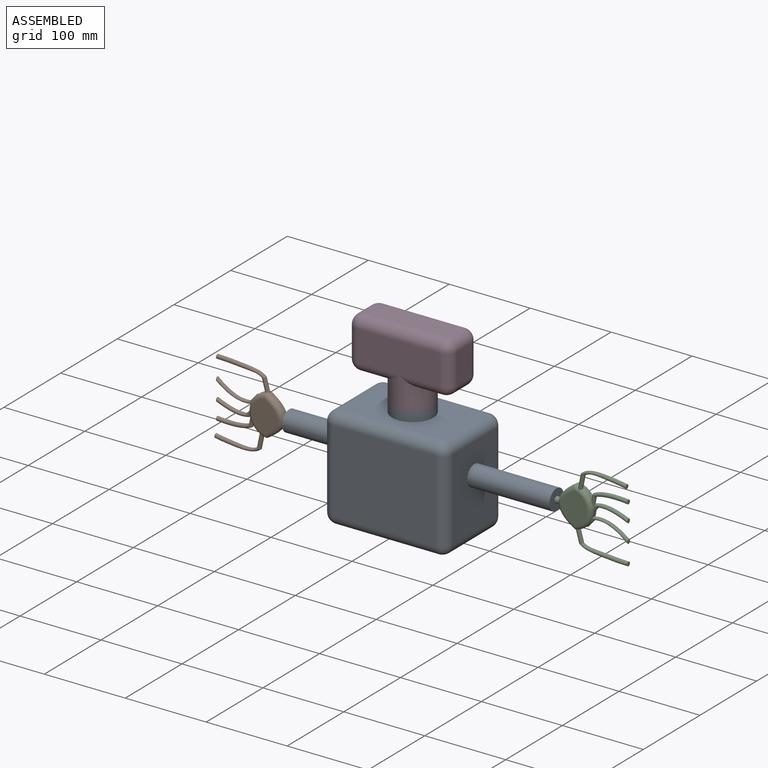
[diagram: assembled view]
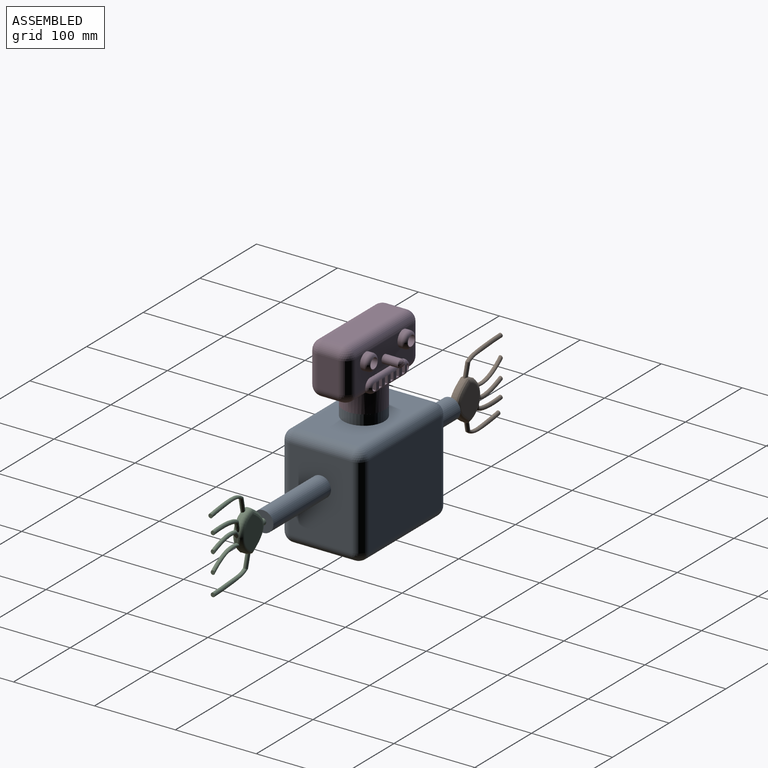
[diagram: assembled view, second angle]
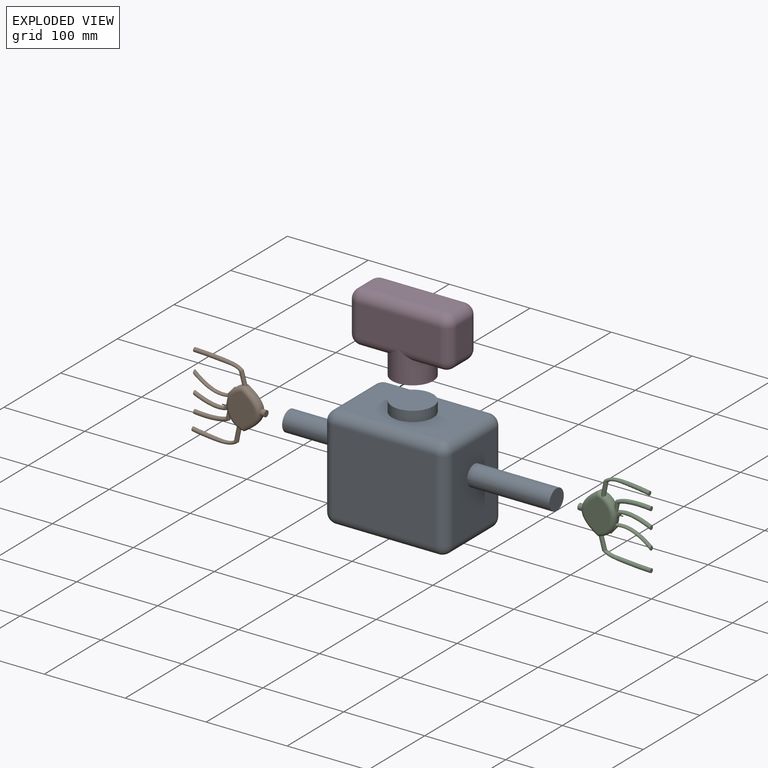
[diagram: exploded view]
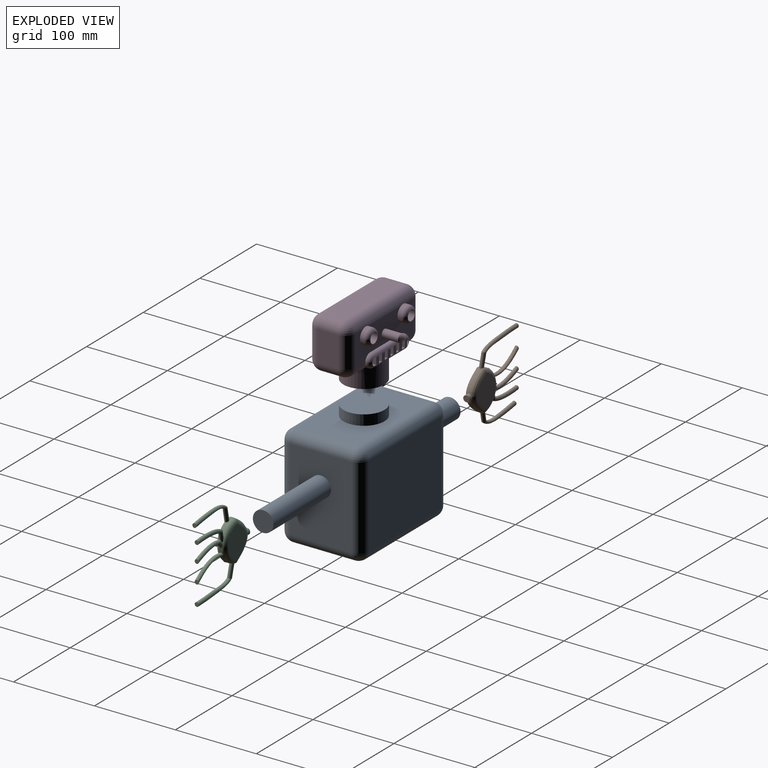
[diagram: exploded view, second angle]
ASSEMBLY  parts=4 mates=3
PART A: 32 faces, bbox 330.2x101.6x139.7 mm
  f0: plane 127x101.6mm, normal (0,-1,0), area 12903.2mm2, adj f16,f21,f24,f27
  f1: plane 101.6x76.2mm, normal (1,0,0), area 7235.2mm2, adj f13,f22,f23,f27,f28
  f2: plane 127x101.6mm, normal (0,1,0), area 12903.2mm2, adj f8,f12,f13,f14
  f3: plane 101.6x76.2mm, normal (-1,0,0), area 7235.2mm2, adj f8,f11,f15,f16,f30
  f4: plane 127x76.2mm, normal (0,0,1), area 7650.6mm2, adj f6,f11,f12,f21,f22
  f5: plane 127x76.2mm, normal (0,0,-1), area 9677.4mm2, adj f14,f15,f23,f24
  f6: cylinder r=25.4mm len=50.8mm, axis (0,0,-1), area 2026.8mm2, adj f4,f7
  f7: plane 50.8x50.8mm, normal (0,0,1), area 2026.8mm2, adj f6
  f8: cylinder r=12.7mm len=101.6mm, axis (0,0,1), area 2026.8mm2, adj f2,f3,f9,f10
  f9: sphere r=12.7mm, area 253.4mm2, adj f8,f11,f12
  f10: sphere r=12.7mm, area 253.4mm2, adj f8,f14,f15
  f11: cylinder r=12.7mm len=76.2mm, axis (0,1,0), area 1520.1mm2, adj f3,f4,f9,f17
  f12: cylinder r=12.7mm len=127mm, axis (1,0,0), area 2533.5mm2, adj f2,f4,f9,f18
  f13: cylinder r=12.7mm len=101.6mm, axis (0,0,-1), area 2026.8mm2, adj f1,f2,f18,f19
  f14: cylinder r=12.7mm len=127mm, axis (-1,0,0), area 2533.5mm2, adj f2,f5,f10,f19
  f15: cylinder r=12.7mm len=76.2mm, axis (0,-1,0), area 1520.1mm2, adj f3,f5,f10,f20
  f16: cylinder r=12.7mm len=101.6mm, axis (0,0,-1), area 2026.8mm2, adj f0,f3,f17,f20
  f17: sphere r=12.7mm, area 253.4mm2, adj f11,f16,f21
  f18: sphere r=12.7mm, area 253.4mm2, adj f12,f13,f22
  f19: sphere r=12.7mm, area 253.4mm2, adj f13,f14,f23
  f20: sphere r=12.7mm, area 253.4mm2, adj f15,f16,f24
  f21: cylinder r=12.7mm len=127mm, axis (-1,0,0), area 2533.5mm2, adj f0,f4,f17,f25
  f22: cylinder r=12.7mm len=76.2mm, axis (0,-1,0), area 1520.1mm2, adj f1,f4,f18,f25
  f23: cylinder r=12.7mm len=76.2mm, axis (0,1,0), area 1520.1mm2, adj f1,f5,f19,f26
  f24: cylinder r=12.7mm len=127mm, axis (1,0,0), area 2533.5mm2, adj f0,f5,f20,f26
  f25: sphere r=12.7mm, area 253.4mm2, adj f21,f22,f27
  f26: sphere r=12.7mm, area 253.4mm2, adj f23,f24,f27
  f27: cylinder r=12.7mm len=101.6mm, axis (0,0,1), area 2026.8mm2, adj f0,f1,f25,f26
  f28: cylinder r=12.7mm len=101.6mm, axis (-1,0,0), area 8107.3mm2, adj f1,f29
  f29: plane 25.4x25.4mm, normal (1,0,0), area 506.7mm2, adj f28
  f30: cylinder r=12.7mm len=76.2mm, axis (1,0,0), area 6080.5mm2, adj f3,f31
  f31: plane 25.4x25.4mm, normal (-1,0,0), area 506.7mm2, adj f30
PART B: 31 faces, bbox 96.9x13.4x89.6 mm
  f0: extruded ~21.81x20.44mm, area 77.5mm2, adj f1,f23,f26,f29
  f1: cylinder r=25.7mm len=18.64mm, axis (0,1,0), area 56.5mm2, adj f0,f6,f17,f25,f28
  f2: cylinder r=25.7mm len=6.63mm, axis (0,1,0), area 15.8mm2, adj f10,f20,f25,f28
  f3: plane 5.79x5.79mm, normal (0,0,1), area 20.3mm2, adj f4
  f4: bspline ~40.44x12.81mm, area 600.5mm2, adj f3,f20
  f5: cylinder r=25.7mm len=9.94mm, axis (0,1,0), area 28.9mm2, adj f12,f22,f25,f28
  f6: extruded ~14.08x6.41mm, area 137.3mm2, adj f1,f16,f20,f25,f28
  f7: extruded ~21.19x19.43mm, area 74.8mm2, adj f12,f23,f26,f29
  f8: plane 40.13x32.47mm, normal (0,-1,0), area 906.8mm2, adj f26,f27,f28
  f9: plane 40.13x32.47mm, normal (0,1,0), area 906.7mm2, adj f23,f24,f25
  f10: bspline ~45.4x19.99mm, area 635.4mm2, adj f2,f11,f21,f25,f28
  f11: plane 5.79x5.79mm, normal (0,0,1), area 20.3mm2, adj f10
  f12: cylinder r=2.54mm len=17.63mm, axis (-0.96,0,0.27), area 257.9mm2, adj f5,f7,f14,f23,f24,f26,f27
  f13: plane 5.79x5.79mm, normal (0,0,1), area 20.3mm2, adj f14
  f14: bspline ~60.25x10.81mm, area 906.8mm2, adj f12,f13
  f15: plane 5.79x5.79mm, normal (0,0,1), area 20.3mm2, adj f16
  f16: bspline ~43.75x8.16mm, area 666.6mm2, adj f6,f15
  f17: cylinder r=2.54mm len=18.65mm, axis (0.98,0,0.2), area 264.3mm2, adj f1,f19,f25
  f18: plane 5.79x5.79mm, normal (0,0,1), area 20.3mm2, adj f19
  f19: bspline ~56.41x8.76mm, area 823mm2, adj f17,f18
  f20: cylinder r=2.54mm len=9.03mm, axis (0.76,0,0.65), area 83.6mm2, adj f2,f4,f6,f25,f28
  f21: extruded ~11x10.53mm, area 65.6mm2, adj f10,f22,f25,f28
  f22: plane 3.98x0.83mm, normal (-0.86,0,-0.51), area 2.5mm2, adj f5,f21,f25,f28
  f23: bspline ~54.32x28.78mm, area 487.9mm2, adj f0,f7,f9,f12,f24,f25,f29
  f24: bspline ~5.73x5.16mm, area 17mm2, adj f9,f12,f23,f25
  f25: torus R=20.62mm, axis (0,-1,0), area 463.5mm2, adj f1,f2,f5,f6,f9,f10,f17,f20
  f26: bspline ~54.32x28.78mm, area 488mm2, adj f0,f7,f8,f12,f27,f28,f29
  f27: bspline ~5.74x5.21mm, area 17mm2, adj f8,f12,f26,f28
  f28: torus R=20.62mm, axis (0,-1,0), area 483.7mm2, adj f1,f2,f5,f6,f8,f10,f20,f21
  f29: cylinder r=3.81mm len=7.62mm, axis (0,0,1), area 118.9mm2, adj f0,f7,f23,f26,f30
  f30: plane 7.62x7.62mm, normal (0,0,-1), area 45.6mm2, adj f29
PART C: same geometry as B
PART D: 89 faces, bbox 127.1x76.3x89 mm
  f0: cylinder r=12.7mm len=101.6mm, axis (-1,0,0), area 2009.9mm2, adj f30,f34,f59,f68,f82,f86
  f1: plane 6.88x5.08mm, normal (0,1,0), area 34.9mm2, adj f53,f54,f77,f78
  f2: plane 6.88x5.08mm, normal (0,1,0), area 34.9mm2, adj f51,f52,f77,f78
  f3: plane 6.88x5.08mm, normal (0,1,0), area 34.9mm2, adj f49,f50,f77,f78
  f4: plane 6.88x5.08mm, normal (0,1,0), area 34.9mm2, adj f43,f44,f77,f78
  f5: plane 6.88x5.08mm, normal (0,1,0), area 34.9mm2, adj f45,f46,f77,f78
  f6: plane 28.8x25.4mm, normal (0,0,-1), area 673.2mm2, adj f7,f10,f73,f74
  f7: cylinder r=12.7mm len=50.8mm, axis (-1,0,0), area 764.7mm2, adj f6,f35,f71,f74
  f8: cylinder r=12.7mm len=50.8mm, axis (-1,0,0), area 764.7mm2, adj f32,f35,f66,f74
  f9: cylinder r=12.7mm len=36.84mm, axis (1,0,0), area 501.5mm2, adj f30,f32,f37,f38,f67,f74
  f10: cylinder r=12.7mm len=36.84mm, axis (1,0,0), area 458.8mm2, adj f6,f30,f38,f39,f72,f74
  f11: plane 6.19x1.78mm, normal (0,0,-1), area 11mm2, adj f13,f40,f54,f77
  f12: plane 6.19x1.78mm, normal (0,0,1), area 11mm2, adj f13,f40,f54,f78
  f13: plane 9.42x6.49mm, normal (0,1,0), area 51.6mm2, adj f11,f12,f40,f54
  f14: plane 6.19x5.08mm, normal (0,0,-1), area 31.4mm2, adj f16,f52,f53,f77
  f15: plane 6.19x5.08mm, normal (0,0,1), area 31.4mm2, adj f16,f52,f53,f78
  f16: plane 9.42x5.08mm, normal (0,1,0), area 47.8mm2, adj f14,f15,f52,f53
  f17: plane 6.19x5.08mm, normal (0,0,-1), area 31.4mm2, adj f19,f49,f51,f77
  f18: plane 6.19x5.08mm, normal (0,0,1), area 31.4mm2, adj f19,f49,f51,f78
  f19: plane 9.42x5.08mm, normal (0,1,0), area 47.8mm2, adj f17,f18,f49,f51
  f20: plane 6.19x5.08mm, normal (0,0,-1), area 31.4mm2, adj f22,f46,f47,f77
  f21: plane 6.19x5.08mm, normal (0,0,1), area 31.4mm2, adj f22,f46,f47,f78
  f22: plane 9.42x5.08mm, normal (0,1,0), area 47.8mm2, adj f20,f21,f46,f47
  f23: cylinder r=4.71mm len=9.1mm, axis (0,-1,0), area 76.4mm2, adj f42,f48,f76
  f24: plane 6.19x5.08mm, normal (0,0,-1), area 31.4mm2, adj f26,f44,f45,f77
  f25: plane 6.19x5.08mm, normal (0,0,1), area 31.4mm2, adj f26,f44,f45,f78
  f26: plane 9.42x5.08mm, normal (0,1,0), area 47.8mm2, adj f24,f25,f44,f45
  f27: plane 6.19x5.08mm, normal (0,0,-1), area 31.4mm2, adj f29,f43,f50,f77
  f28: plane 6.19x5.08mm, normal (0,0,1), area 31.4mm2, adj f29,f43,f50,f78
  f29: plane 9.42x5.08mm, normal (0,1,0), area 47.8mm2, adj f27,f28,f43,f50
  f30: plane 101.6x38.1mm, normal (0,1,0), area 2640.6mm2, adj f0,f9,f10,f36,f37,f39,f55,f63
  f31: plane 38.1x25.4mm, normal (-1,0,0), area 967.7mm2, adj f64,f69,f70,f73
  f32: plane 28.8x25.4mm, normal (0,0,-1), area 673.2mm2, adj f8,f9,f62,f74
  f33: plane 38.1x25.4mm, normal (1,0,0), area 967.7mm2, adj f57,f61,f62,f63
  f34: plane 101.6x25.4mm, normal (0,0,1), area 2580.6mm2, adj f0,f57,f60,f64
  f35: plane 101.6x38.1mm, normal (0,-1,0), area 3871mm2, adj f7,f8,f60,f61,f69
  f36: plane 54.83x1.27mm, normal (0,0,1), area 69.6mm2, adj f30,f37,f39,f77
  f37: cylinder r=8.52mm len=17.04mm, axis (0,-1,0), area 62.1mm2, adj f9,f30,f36,f38,f79
  f38: plane 54.83x5.45mm, normal (0,0,-1), area 219.6mm2, adj f9,f10,f37,f39,f74,f78
  f39: cylinder r=8.52mm len=17.04mm, axis (0,-1,0), area 62.1mm2, adj f10,f30,f36,f38,f76
  f40: cylinder r=4.71mm len=9.42mm, axis (0,-1,0), area 91.5mm2, adj f11,f12,f13,f79
  f41: plane 6.88x3.46mm, normal (0,1,0), area 23.6mm2, adj f47,f48,f76,f77,f78
  f42: plane 9.1x3.5mm, normal (0,1,0), area 23.6mm2, adj f23,f48
  f43: plane 9.42x6.35mm, normal (1,0,0), area 59.7mm2, adj f4,f27,f28,f29,f77,f78
  f44: plane 9.42x6.35mm, normal (-1,0,0), area 59.7mm2, adj f4,f24,f25,f26,f77,f78
  f45: plane 9.42x6.35mm, normal (1,0,0), area 59.7mm2, adj f5,f24,f25,f26,f77,f78
  f46: plane 9.42x6.35mm, normal (-1,0,0), area 59.7mm2, adj f5,f20,f21,f22,f77,f78
  f47: plane 9.42x6.35mm, normal (1,0,0), area 59.7mm2, adj f20,f21,f22,f41,f77,f78
  f48: plane 9.17x6.42mm, normal (-1,0,0), area 57.7mm2, adj f23,f41,f42,f76
  f49: plane 9.42x6.35mm, normal (1,0,0), area 59.7mm2, adj f3,f17,f18,f19,f77,f78
  f50: plane 9.42x6.35mm, normal (-1,0,0), area 59.7mm2, adj f3,f27,f28,f29,f77,f78
  f51: plane 9.42x6.35mm, normal (-1,0,0), area 59.7mm2, adj f2,f17,f18,f19,f77,f78
  f52: plane 9.42x6.35mm, normal (1,0,0), area 59.7mm2, adj f2,f14,f15,f16,f77,f78
  f53: plane 9.42x6.35mm, normal (-1,0,0), area 59.7mm2, adj f1,f14,f15,f16,f77,f78
  f54: plane 9.42x6.35mm, normal (1,0,0), area 59.7mm2, adj f1,f11,f12,f13,f77,f78
  f55: cylinder r=5.11mm len=20.32mm, axis (0,-1,0), area 652.7mm2, adj f30,f80
  f56: plane 0.06x0.06mm, normal (0,1,0), area 0mm2, adj f80
  f57: cylinder r=12.7mm len=25.4mm, axis (0,-1,0), area 506.7mm2, adj f33,f34,f58,f59
  f58: sphere r=12.7mm, area 253.4mm2, adj f57,f60,f61
  f59: sphere r=12.7mm, area 253.4mm2, adj f0,f57,f63
  f60: cylinder r=12.7mm len=101.6mm, axis (1,0,0), area 2026.8mm2, adj f34,f35,f58,f65
  f61: cylinder r=12.7mm len=38.1mm, axis (0,0,-1), area 760.1mm2, adj f33,f35,f58,f66
  f62: cylinder r=12.7mm len=25.4mm, axis (0,1,0), area 506.7mm2, adj f32,f33,f66,f67
  f63: cylinder r=12.7mm len=38.1mm, axis (0,0,1), area 760.1mm2, adj f30,f33,f59,f67
  f64: cylinder r=12.7mm len=25.4mm, axis (0,1,0), area 506.7mm2, adj f31,f34,f65,f68
  f65: sphere r=12.7mm, area 253.4mm2, adj f60,f64,f69
  f66: sphere r=12.7mm, area 253.4mm2, adj f8,f61,f62
  f67: sphere r=12.7mm, area 253.4mm2, adj f9,f62,f63
  f68: sphere r=12.7mm, area 253.4mm2, adj f0,f64,f70
  f69: cylinder r=12.7mm len=38.1mm, axis (0,0,1), area 760.1mm2, adj f31,f35,f65,f71
  f70: cylinder r=12.7mm len=38.1mm, axis (0,0,-1), area 760.1mm2, adj f30,f31,f68,f72
  f71: sphere r=12.7mm, area 253.4mm2, adj f7,f69,f73
  f72: sphere r=12.7mm, area 253.4mm2, adj f10,f70,f73
  f73: cylinder r=12.7mm len=25.4mm, axis (0,-1,0), area 506.7mm2, adj f6,f31,f71,f72
  f74: cylinder r=25.4mm len=50.8mm, axis (0,0,1), area 4433.9mm2, adj f6,f7,f8,f9,f10,f32,f38,f75
  f75: plane 50.8x50.8mm, normal (0,0,-1), area 2026.8mm2, adj f74
  f76: torus R=3.44mm, axis (0,1,0), area 154mm2, adj f23,f39,f41,f48,f77,f78
  f77: cylinder r=5.08mm len=54.83mm, axis (-1,0,0), area 402.6mm2, adj f1,f2,f3,f4,f5,f11,f14,f17
  f78: cylinder r=5.08mm len=54.83mm, axis (1,0,0), area 402.6mm2, adj f1,f2,f3,f4,f5,f12,f15,f18
  f79: torus R=3.44mm, axis (0,1,0), area 150.8mm2, adj f37,f40,f77,f78
  f80: torus R=0.03mm, axis (0,1,0), area 163.8mm2, adj f55,f56
  f81: cylinder r=6.35mm len=12.7mm, axis (0,-1,0), area 405.4mm2, adj f83,f84
  f82: cylinder r=10.16mm len=20.32mm, axis (0,-1,0), area 334.6mm2, adj f0,f30,f83
  f83: torus R=5.08mm, axis (0,1,0), area 370.7mm2, adj f81,f82
  f84: plane 12.7x12.7mm, normal (0,1,0), area 126.7mm2, adj f81
  f85: cylinder r=6.35mm len=12.7mm, axis (0,-1,0), area 405.4mm2, adj f87,f88
  f86: cylinder r=10.16mm len=20.32mm, axis (0,-1,0), area 334.6mm2, adj f0,f30,f87
  f87: torus R=5.08mm, axis (0,1,0), area 370.7mm2, adj f85,f86
  f88: plane 12.7x12.7mm, normal (0,1,0), area 126.7mm2, adj f85
PLACE A t=(11.44,-9.13,-93.46)mm
PLACE B rot(axis=(0.71,0,-0.71),180deg) t=(-166.36,-9.13,-17.26)mm
PLACE C rot(axis=(0.71,0,0.71),180deg) t=(214.64,-9.13,-17.26)mm
PLACE D t=(11.44,-9.13,103.39)mm
MATE fastened C.f29 <-> A.f28  axis (-1,0,0) through (189.24,-9.13,-17.26)mm
MATE fastened D.f74 <-> A.f6  axis (0,0,-1) through (11.44,-9.13,46.24)mm
MATE fastened B.f29 <-> A.f30  axis (1,0,0) through (-140.96,-9.13,-17.26)mm
